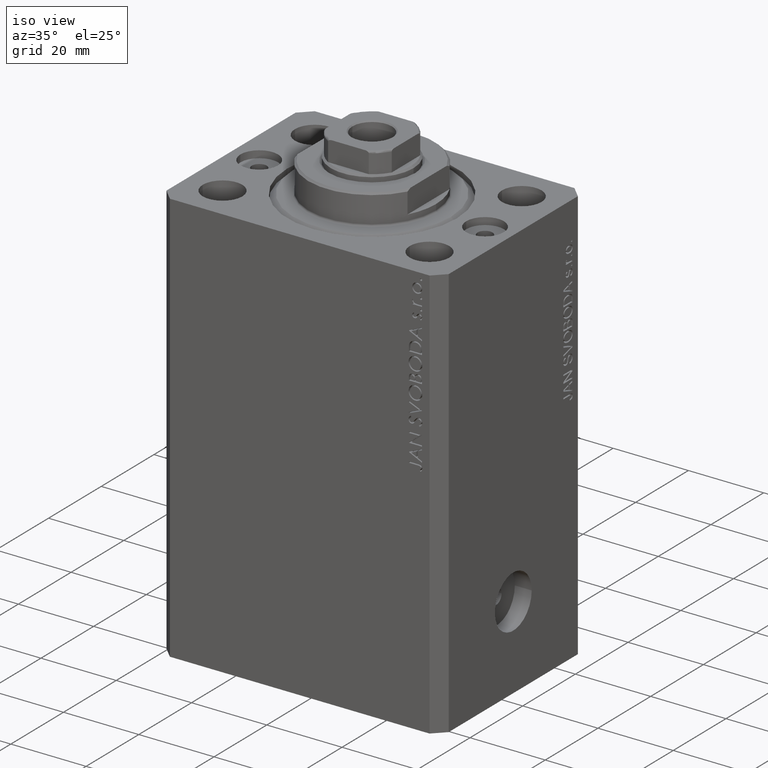
[diagram: clean part render]
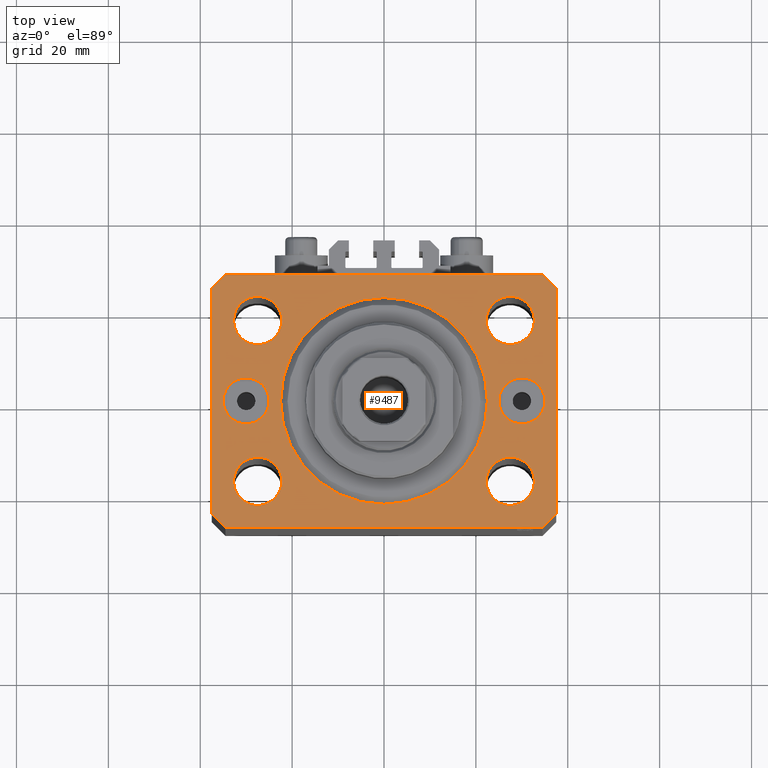
[diagram: tour spotlight — one face highlighted and labeled with its STEP entity id]
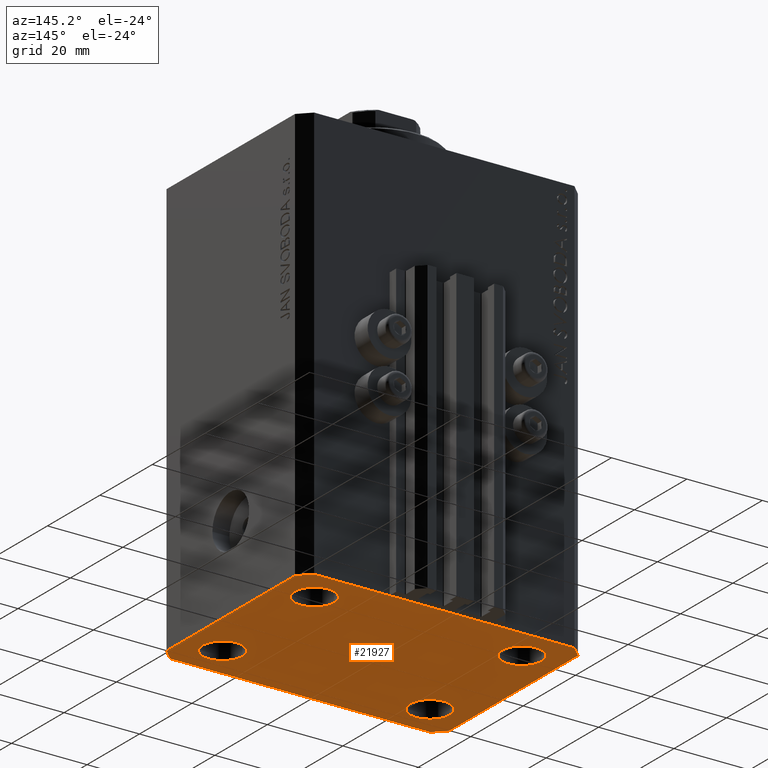
[diagram: tour spotlight — one face highlighted and labeled with its STEP entity id]
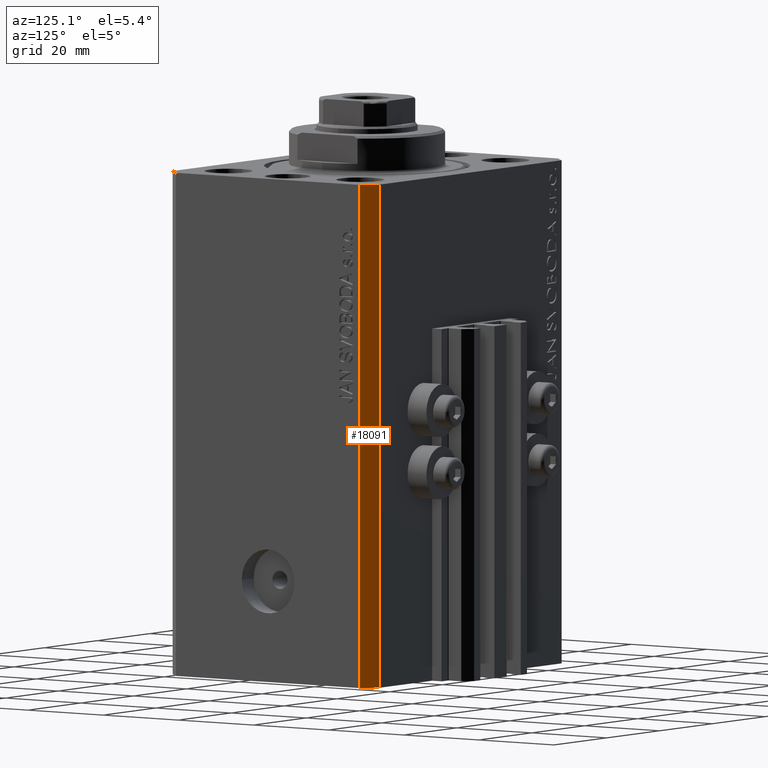
[diagram: tour spotlight — one face highlighted and labeled with its STEP entity id]
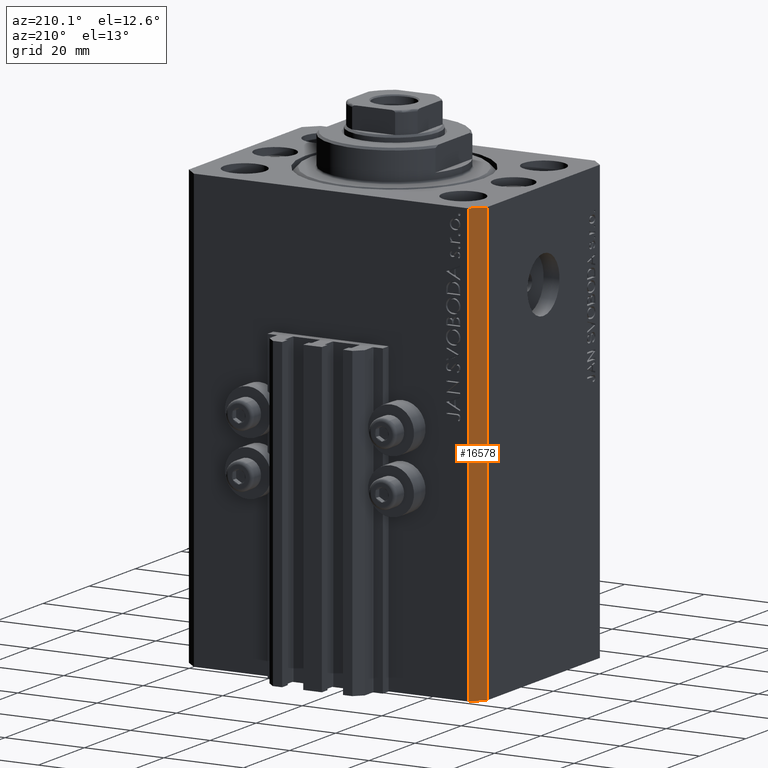
[diagram: tour spotlight — one face highlighted and labeled with its STEP entity id]
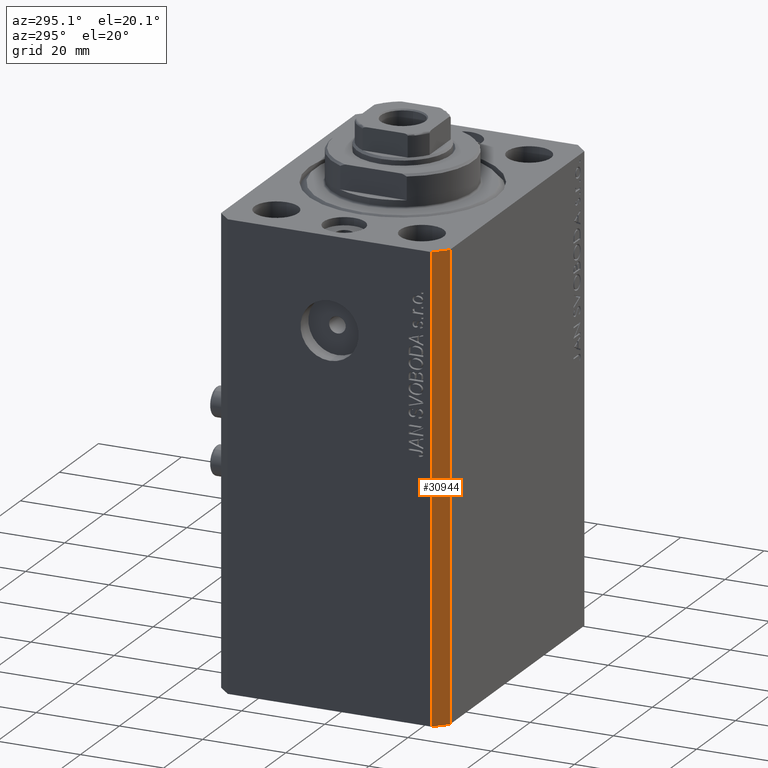
[diagram: tour spotlight — one face highlighted and labeled with its STEP entity id]
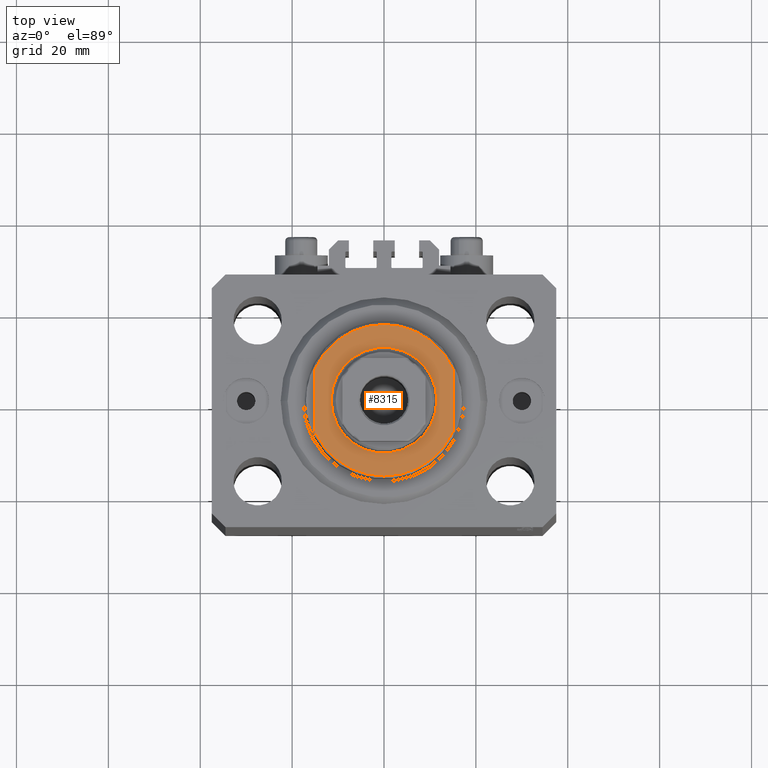
[diagram: tour spotlight — one face highlighted and labeled with its STEP entity id]
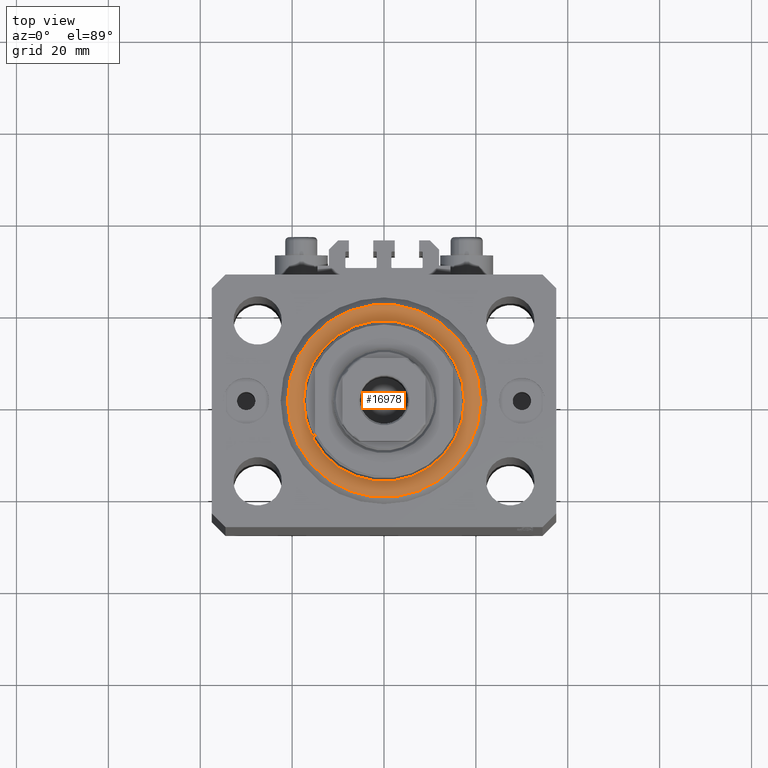
[diagram: tour spotlight — one face highlighted and labeled with its STEP entity id]
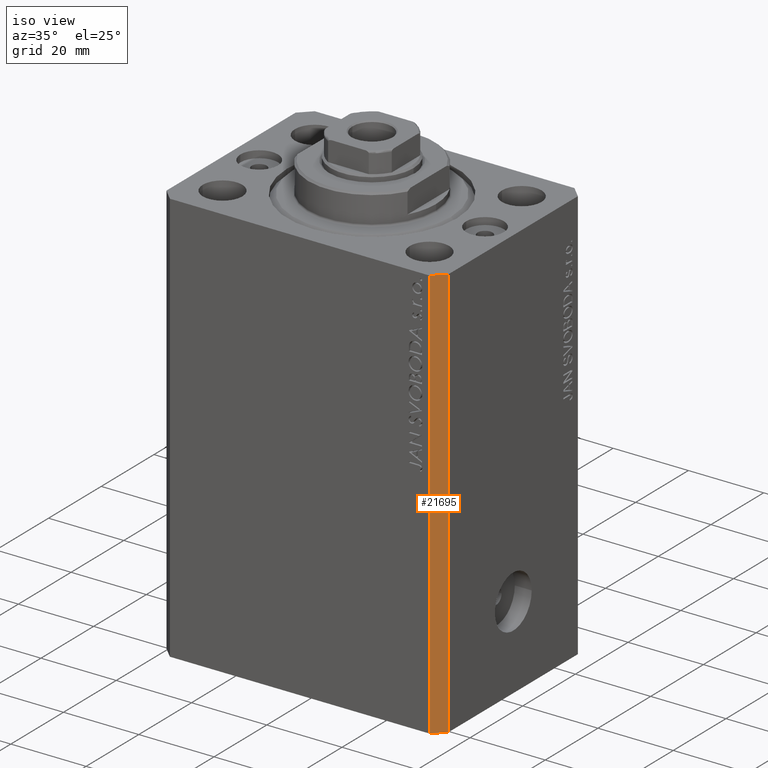
[diagram: tour spotlight — one face highlighted and labeled with its STEP entity id]
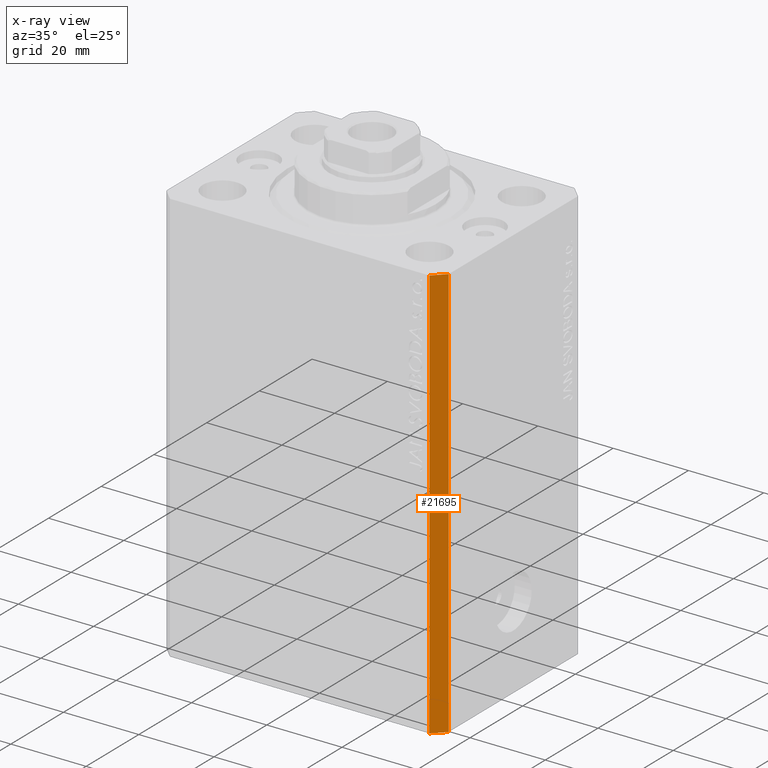
[diagram: x-ray of the same camera — body ghosted, this tour face saturated]
A machine part: a face-by-face anatomy tour. The part has 1034 B-rep faces; the first image is the clean iso view, then the 8 largest visible faces are spotlighted one at a time (largest first), each with its STEP entity span.

Face 1 — top view, entity #9487. In plain terms, the highlighted planar face has unit normal (0, 0, 1).
Definition (entity closure, byte-faithful):
#132 = DIRECTION ( 'NONE',  ( 0.000000000000000000, 0.000000000000000000, 1.000000000000000000 ) ) ;
#254 = VECTOR ( 'NONE', #45455, 1000.000000000000000 ) ;
#823 = EDGE_CURVE ( 'NONE', #27135, #6800, #34237, .T. ) ;
#1219 = LINE ( 'NONE', #1446, #27474 ) ;
#1446 = CARTESIAN_POINT ( 'NONE',  ( -34.49999999999999289, 27.50000000000000000, 0.000000000000000000 ) ) ;
#1854 = DIRECTION ( 'NONE',  ( 1.000000000000000000, 0.000000000000000000, 0.000000000000000000 ) ) ;
#2000 = CIRCLE ( 'NONE', #41643, 5.250000000000000888 ) ;
#3259 = ORIENTED_EDGE ( 'NONE', *, *, #21815, .F. ) ;
#3407 = VERTEX_POINT ( 'NONE', #8790 ) ;
#3592 = CIRCLE ( 'NONE', #30306, 5.250000000000000888 ) ;
#3727 = EDGE_CURVE ( 'NONE', #25264, #32768, #7985, .T. ) ;
#3771 = ORIENTED_EDGE ( 'NONE', *, *, #36110, .F. ) ;
#3781 = DIRECTION ( 'NONE',  ( 1.000000000000000000, 0.000000000000000000, 0.000000000000000000 ) ) ;
#4380 = EDGE_CURVE ( 'NONE', #21487, #26575, #29325, .T. ) ;
#4481 = CARTESIAN_POINT ( 'NONE',  ( 27.49999999999999289, -17.50000000000000000, 0.000000000000000000 ) ) ;
#4663 = EDGE_LOOP ( 'NONE', ( #3771, #7309 ) ) ;
#4707 = ORIENTED_EDGE ( 'NONE', *, *, #36706, .T. ) ;
#5273 = AXIS2_PLACEMENT_3D ( 'NONE', #13348, #27931, #42476 ) ;
#5532 = ORIENTED_EDGE ( 'NONE', *, *, #16841, .F. ) ;
#5950 = CARTESIAN_POINT ( 'NONE',  ( -27.50000000000000000, 17.49999999999999645, 0.000000000000000000 ) ) ;
#6189 = FACE_BOUND ( 'NONE', #14330, .T. ) ;
#6418 = DIRECTION ( 'NONE',  ( 0.000000000000000000, 0.000000000000000000, 1.000000000000000000 ) ) ;
#6424 = FACE_BOUND ( 'NONE', #38533, .T. ) ;
#6665 = DIRECTION ( 'NONE',  ( 1.000000000000000000, 0.000000000000000000, -0.000000000000000000 ) ) ;
#6672 = CARTESIAN_POINT ( 'NONE',  ( -37.49999999999999289, 24.50000000000000000, 0.000000000000000000 ) ) ;
#6792 = VECTOR ( 'NONE', #38456, 1000.000000000000000 ) ;
#6800 = VERTEX_POINT ( 'NONE', #38428 ) ;
#6939 = VERTEX_POINT ( 'NONE', #36015 ) ;
#7309 = ORIENTED_EDGE ( 'NONE', *, *, #4380, .F. ) ;
#7368 = CARTESIAN_POINT ( 'NONE',  ( 30.00000000000000000, 0.000000000000000000, 0.000000000000000000 ) ) ;
#7985 = CIRCLE ( 'NONE', #40776, 4.999999999999997335 ) ;
#8313 = EDGE_LOOP ( 'NONE', ( #10529, #17914 ) ) ;
#8698 = AXIS2_PLACEMENT_3D ( 'NONE', #30864, #38258, #35851 ) ;
#8717 = EDGE_CURVE ( 'NONE', #6939, #3407, #2000, .T. ) ;
#8720 = AXIS2_PLACEMENT_3D ( 'NONE', #19198, #25665, #40466 ) ;
#8790 = CARTESIAN_POINT ( 'NONE',  ( -22.25000000000000000, 17.49999999999999645, 0.000000000000000000 ) ) ;
#8909 = CIRCLE ( 'NONE', #35600, 5.000000000000000888 ) ;
#8950 = VERTEX_POINT ( 'NONE', #32150 ) ;
#9032 = CIRCLE ( 'NONE', #43319, 22.50000000000000355 ) ;
#9430 = DIRECTION ( 'NONE',  ( 1.000000000000000000, 0.000000000000000000, 0.000000000000000000 ) ) ;
#9487 = ADVANCED_FACE ( 'NONE', ( #10726, #6424, #17384, #46546, #31501, #6189, #46307, #20741 ), #46070, .T. ) ;
#9676 = EDGE_CURVE ( 'NONE', #8950, #35589, #21078, .T. ) ;
#9753 = DIRECTION ( 'NONE',  ( 0.000000000000000000, 0.000000000000000000, 1.000000000000000000 ) ) ;
#9770 = VERTEX_POINT ( 'NONE', #20683 ) ;
#9892 = VERTEX_POINT ( 'NONE', #36934 ) ;
#10529 = ORIENTED_EDGE ( 'NONE', *, *, #3727, .T. ) ;
#10567 = CARTESIAN_POINT ( 'NONE',  ( 22.25000000000000000, 17.49999999999999289, 0.000000000000000000 ) ) ;
#10726 = FACE_OUTER_BOUND ( 'NONE', #26470, .T. ) ;
#11215 = CARTESIAN_POINT ( 'NONE',  ( 0.000000000000000000, 0.000000000000000000, 0.000000000000000000 ) ) ;
#11610 = ORIENTED_EDGE ( 'NONE', *, *, #9676, .F. ) ;
#11851 = DIRECTION ( 'NONE',  ( 1.000000000000000000, 0.000000000000000000, 0.000000000000000000 ) ) ;
#11987 = ORIENTED_EDGE ( 'NONE', *, *, #24718, .T. ) ;
#12053 = VERTEX_POINT ( 'NONE', #25090 ) ;
#12223 = DIRECTION ( 'NONE',  ( 0.7071067811865483499, -0.7071067811865466846, 0.000000000000000000 ) ) ;
#12376 = EDGE_CURVE ( 'NONE', #32768, #25264, #29956, .T. ) ;
#12427 = VECTOR ( 'NONE', #35173, 1000.000000000000000 ) ;
#12806 = ORIENTED_EDGE ( 'NONE', *, *, #823, .T. ) ;
#13291 = CARTESIAN_POINT ( 'NONE',  ( 25.00000000000000000, 6.123233995736762338E-16, 0.000000000000000000 ) ) ;
#13344 = CARTESIAN_POINT ( 'NONE',  ( 0.000000000000000000, 0.000000000000000000, 0.000000000000000000 ) ) ;
#13348 = CARTESIAN_POINT ( 'NONE',  ( 0.000000000000000000, 0.000000000000000000, 0.000000000000000000 ) ) ;
#13967 = CARTESIAN_POINT ( 'NONE',  ( -24.99999999999999645, 0.000000000000000000, 0.000000000000000000 ) ) ;
#14330 = EDGE_LOOP ( 'NONE', ( #3259, #41585 ) ) ;
#14385 = CIRCLE ( 'NONE', #44126, 5.250000000000000888 ) ;
#15201 = EDGE_CURVE ( 'NONE', #41236, #9892, #41377, .T. ) ;
#15356 = EDGE_CURVE ( 'NONE', #38666, #16362, #38814, .T. ) ;
#15682 = DIRECTION ( 'NONE',  ( 1.000000000000000000, 0.000000000000000000, 0.000000000000000000 ) ) ;
#16223 = AXIS2_PLACEMENT_3D ( 'NONE', #4481, #23086, #15682 ) ;
#16362 = VERTEX_POINT ( 'NONE', #21754 ) ;
#16393 = CARTESIAN_POINT ( 'NONE',  ( 22.24999999999999289, -17.50000000000000000, 0.000000000000000000 ) ) ;
#16488 = CARTESIAN_POINT ( 'NONE',  ( -27.49999999999999289, -17.50000000000000000, 0.000000000000000000 ) ) ;
#16611 = CARTESIAN_POINT ( 'NONE',  ( 34.50000000000056843, 27.50000000000000000, 0.000000000000000000 ) ) ;
#16682 = DIRECTION ( 'NONE',  ( -0.7071067811865471286, -0.7071067811865479058, 0.000000000000000000 ) ) ;
#16841 = EDGE_CURVE ( 'NONE', #35589, #8950, #3592, .T. ) ;
#16898 = CARTESIAN_POINT ( 'NONE',  ( -27.50000000000000000, 17.49999999999999645, 0.000000000000000000 ) ) ;
#17384 = FACE_BOUND ( 'NONE', #32743, .T. ) ;
#17491 = VERTEX_POINT ( 'NONE', #23408 ) ;
#17914 = ORIENTED_EDGE ( 'NONE', *, *, #12376, .T. ) ;
#18242 = VERTEX_POINT ( 'NONE', #34915 ) ;
#19198 = CARTESIAN_POINT ( 'NONE',  ( 27.49999999999999289, -17.50000000000000000, 0.000000000000000000 ) ) ;
#19371 = ORIENTED_EDGE ( 'NONE', *, *, #8717, .F. ) ;
#20223 = EDGE_CURVE ( 'NONE', #3407, #6939, #14385, .T. ) ;
#20271 = LINE ( 'NONE', #30586, #6792 ) ;
#20477 = DIRECTION ( 'NONE',  ( 1.000000000000000000, 0.000000000000000000, 0.000000000000000000 ) ) ;
#20592 = CARTESIAN_POINT ( 'NONE',  ( -37.49999999999999289, 24.50000000000000000, 0.000000000000000000 ) ) ;
#20670 = VERTEX_POINT ( 'NONE', #13967 ) ;
#20683 = CARTESIAN_POINT ( 'NONE',  ( 22.50000000000000355, 0.000000000000000000, 0.000000000000000000 ) ) ;
#20741 = FACE_BOUND ( 'NONE', #8313, .T. ) ;
#20845 = VECTOR ( 'NONE', #12223, 1000.000000000000000 ) ;
#20969 = AXIS2_PLACEMENT_3D ( 'NONE', #41494, #37921, #1854 ) ;
#21078 = CIRCLE ( 'NONE', #20969, 5.250000000000000888 ) ;
#21131 = CARTESIAN_POINT ( 'NONE',  ( 34.49999999999999289, -27.49999999999999645, 0.000000000000000000 ) ) ;
#21323 = CARTESIAN_POINT ( 'NONE',  ( -32.74999999999999289, -17.50000000000000000, 0.000000000000000000 ) ) ;
#21487 = VERTEX_POINT ( 'NONE', #16393 ) ;
#21606 = EDGE_CURVE ( 'NONE', #40800, #33850, #20271, .T. ) ;
#21754 = CARTESIAN_POINT ( 'NONE',  ( 34.49999999999999289, -27.49999999999999645, 0.000000000000000000 ) ) ;
#21798 = VERTEX_POINT ( 'NONE', #6672 ) ;
#21815 = EDGE_CURVE ( 'NONE', #9770, #18242, #24298, .T. ) ;
#22286 = VECTOR ( 'NONE', #35451, 1000.000000000000000 ) ;
#22347 = ORIENTED_EDGE ( 'NONE', *, *, #41441, .T. ) ;
#22581 = ORIENTED_EDGE ( 'NONE', *, *, #15201, .F. ) ;
#22584 = ORIENTED_EDGE ( 'NONE', *, *, #20223, .F. ) ;
#23086 = DIRECTION ( 'NONE',  ( 0.000000000000000000, 0.000000000000000000, 1.000000000000000000 ) ) ;
#23369 = AXIS2_PLACEMENT_3D ( 'NONE', #13344, #31980, #6665 ) ;
#23395 = EDGE_CURVE ( 'NONE', #18242, #9770, #9032, .T. ) ;
#23408 = CARTESIAN_POINT ( 'NONE',  ( -37.49999999999999289, -24.50000000000000000, 0.000000000000000000 ) ) ;
#24298 = CIRCLE ( 'NONE', #5273, 22.50000000000000355 ) ;
#24718 = EDGE_CURVE ( 'NONE', #6800, #40800, #31302, .T. ) ;
#25030 = CARTESIAN_POINT ( 'NONE',  ( 37.49999999999999289, -24.50000000000000000, 0.000000000000000000 ) ) ;
#25090 = CARTESIAN_POINT ( 'NONE',  ( -34.99999999999999289, 6.123233995736768255E-16, 0.000000000000000000 ) ) ;
#25191 = DIRECTION ( 'NONE',  ( 1.000000000000000000, 0.000000000000000000, 0.000000000000000000 ) ) ;
#25264 = VERTEX_POINT ( 'NONE', #46702 ) ;
#25391 = CARTESIAN_POINT ( 'NONE',  ( 32.74999999999999289, -17.50000000000000000, 0.000000000000000000 ) ) ;
#25510 = DIRECTION ( 'NONE',  ( 0.000000000000000000, -0.000000000000000000, -1.000000000000000000 ) ) ;
#25665 = DIRECTION ( 'NONE',  ( 0.000000000000000000, 0.000000000000000000, 1.000000000000000000 ) ) ;
#26470 = EDGE_LOOP ( 'NONE', ( #28458, #37664, #4707, #22347, #33971, #35124, #12806, #11987 ) ) ;
#26575 = VERTEX_POINT ( 'NONE', #25391 ) ;
#27135 = VERTEX_POINT ( 'NONE', #25030 ) ;
#27249 = DIRECTION ( 'NONE',  ( 0.000000000000000000, 0.000000000000000000, 1.000000000000000000 ) ) ;
#27474 = VECTOR ( 'NONE', #16682, 1000.000000000000000 ) ;
#27544 = EDGE_LOOP ( 'NONE', ( #37559, #33015 ) ) ;
#27704 = CIRCLE ( 'NONE', #33037, 5.250000000000000888 ) ;
#27868 = EDGE_CURVE ( 'NONE', #33850, #21798, #1219, .T. ) ;
#27931 = DIRECTION ( 'NONE',  ( 0.000000000000000000, 0.000000000000000000, 1.000000000000000000 ) ) ;
#28298 = CARTESIAN_POINT ( 'NONE',  ( -34.49999999999998579, -27.49999999999999645, 0.000000000000000000 ) ) ;
#28458 = ORIENTED_EDGE ( 'NONE', *, *, #21606, .T. ) ;
#28790 = DIRECTION ( 'NONE',  ( 0.7071067811865474617, 0.7071067811865474617, 0.000000000000000000 ) ) ;
#29325 = CIRCLE ( 'NONE', #8720, 5.250000000000000888 ) ;
#29546 = DIRECTION ( 'NONE',  ( 0.000000000000000000, 0.000000000000000000, 1.000000000000000000 ) ) ;
#29782 = CARTESIAN_POINT ( 'NONE',  ( -27.49999999999999289, -17.50000000000000000, 0.000000000000000000 ) ) ;
#29956 = CIRCLE ( 'NONE', #45873, 4.999999999999997335 ) ;
#30306 = AXIS2_PLACEMENT_3D ( 'NONE', #44793, #41666, #9430 ) ;
#30395 = CARTESIAN_POINT ( 'NONE',  ( -37.49999999999999289, -24.50000000000000000, 0.000000000000000000 ) ) ;
#30586 = CARTESIAN_POINT ( 'NONE',  ( 34.50000000000056843, 27.50000000000000000, 0.000000000000000000 ) ) ;
#30843 = CARTESIAN_POINT ( 'NONE',  ( 37.50000000000051870, 24.49999999999995381, 0.000000000000000000 ) ) ;
#30864 = CARTESIAN_POINT ( 'NONE',  ( -30.00000000000000000, 0.000000000000000000, 0.000000000000000000 ) ) ;
#31300 = DIRECTION ( 'NONE',  ( 1.000000000000000000, 0.000000000000000000, 0.000000000000000000 ) ) ;
#31302 = LINE ( 'NONE', #30843, #39590 ) ;
#31501 = FACE_BOUND ( 'NONE', #33318, .T. ) ;
#31980 = DIRECTION ( 'NONE',  ( 0.000000000000000000, 0.000000000000000000, 1.000000000000000000 ) ) ;
#32150 = CARTESIAN_POINT ( 'NONE',  ( 32.75000000000000000, 17.49999999999999289, 0.000000000000000000 ) ) ;
#32354 = CIRCLE ( 'NONE', #8698, 5.000000000000000888 ) ;
#32368 = LINE ( 'NONE', #21131, #42079 ) ;
#32448 = DIRECTION ( 'NONE',  ( 1.000000000000000000, 0.000000000000000000, 0.000000000000000000 ) ) ;
#32743 = EDGE_LOOP ( 'NONE', ( #11610, #5532 ) ) ;
#32768 = VERTEX_POINT ( 'NONE', #13291 ) ;
#32942 = DIRECTION ( 'NONE',  ( 0.000000000000000000, 0.000000000000000000, 1.000000000000000000 ) ) ;
#33015 = ORIENTED_EDGE ( 'NONE', *, *, #46743, .F. ) ;
#33037 = AXIS2_PLACEMENT_3D ( 'NONE', #16488, #27249, #31300 ) ;
#33318 = EDGE_LOOP ( 'NONE', ( #38590, #22581 ) ) ;
#33424 = DIRECTION ( 'NONE',  ( 1.000000000000000000, 0.000000000000000000, 0.000000000000000000 ) ) ;
#33485 = CARTESIAN_POINT ( 'NONE',  ( -34.49999999999998579, -27.49999999999999645, 0.000000000000000000 ) ) ;
#33850 = VERTEX_POINT ( 'NONE', #34993 ) ;
#33971 = ORIENTED_EDGE ( 'NONE', *, *, #15356, .T. ) ;
#34237 = LINE ( 'NONE', #41392, #254 ) ;
#34913 = DIRECTION ( 'NONE',  ( 1.000000000000000000, 0.000000000000000000, 0.000000000000000000 ) ) ;
#34915 = CARTESIAN_POINT ( 'NONE',  ( -22.50000000000000355, 2.755455298081545172E-15, 0.000000000000000000 ) ) ;
#34993 = CARTESIAN_POINT ( 'NONE',  ( -34.49999999999999289, 27.50000000000000000, 0.000000000000000000 ) ) ;
#35124 = ORIENTED_EDGE ( 'NONE', *, *, #36231, .T. ) ;
#35148 = DIRECTION ( 'NONE',  ( 0.000000000000000000, -0.000000000000000000, -1.000000000000000000 ) ) ;
#35173 = DIRECTION ( 'NONE',  ( 0.000000000000000000, -1.000000000000000000, 0.000000000000000000 ) ) ;
#35451 = DIRECTION ( 'NONE',  ( 1.000000000000000000, 0.000000000000000000, 0.000000000000000000 ) ) ;
#35589 = VERTEX_POINT ( 'NONE', #10567 ) ;
#35600 = AXIS2_PLACEMENT_3D ( 'NONE', #39525, #132, #25191 ) ;
#35851 = DIRECTION ( 'NONE',  ( 1.000000000000000000, 0.000000000000000000, 0.000000000000000000 ) ) ;
#36015 = CARTESIAN_POINT ( 'NONE',  ( -32.75000000000000000, 17.49999999999999645, 0.000000000000000000 ) ) ;
#36110 = EDGE_CURVE ( 'NONE', #26575, #21487, #36835, .T. ) ;
#36231 = EDGE_CURVE ( 'NONE', #16362, #27135, #32368, .T. ) ;
#36706 = EDGE_CURVE ( 'NONE', #21798, #17491, #39477, .T. ) ;
#36820 = AXIS2_PLACEMENT_3D ( 'NONE', #29782, #29546, #11851 ) ;
#36835 = CIRCLE ( 'NONE', #16223, 5.250000000000000888 ) ;
#36934 = CARTESIAN_POINT ( 'NONE',  ( -22.24999999999999289, -17.50000000000000000, 0.000000000000000000 ) ) ;
#37559 = ORIENTED_EDGE ( 'NONE', *, *, #42174, .F. ) ;
#37664 = ORIENTED_EDGE ( 'NONE', *, *, #27868, .T. ) ;
#37794 = LINE ( 'NONE', #30395, #20845 ) ;
#37921 = DIRECTION ( 'NONE',  ( 0.000000000000000000, 0.000000000000000000, 1.000000000000000000 ) ) ;
#38258 = DIRECTION ( 'NONE',  ( 0.000000000000000000, 0.000000000000000000, 1.000000000000000000 ) ) ;
#38428 = CARTESIAN_POINT ( 'NONE',  ( 37.50000000000051870, 24.49999999999995381, 0.000000000000000000 ) ) ;
#38456 = DIRECTION ( 'NONE',  ( -1.000000000000000000, 0.000000000000000000, 0.000000000000000000 ) ) ;
#38533 = EDGE_LOOP ( 'NONE', ( #22584, #19371 ) ) ;
#38590 = ORIENTED_EDGE ( 'NONE', *, *, #39734, .F. ) ;
#38666 = VERTEX_POINT ( 'NONE', #33485 ) ;
#38814 = LINE ( 'NONE', #28298, #22286 ) ;
#39477 = LINE ( 'NONE', #20592, #12427 ) ;
#39525 = CARTESIAN_POINT ( 'NONE',  ( -30.00000000000000000, 0.000000000000000000, 0.000000000000000000 ) ) ;
#39590 = VECTOR ( 'NONE', #45861, 1000.000000000000114 ) ;
#39734 = EDGE_CURVE ( 'NONE', #9892, #41236, #27704, .T. ) ;
#40466 = DIRECTION ( 'NONE',  ( 1.000000000000000000, 0.000000000000000000, 0.000000000000000000 ) ) ;
#40776 = AXIS2_PLACEMENT_3D ( 'NONE', #40988, #35148, #34913 ) ;
#40800 = VERTEX_POINT ( 'NONE', #16611 ) ;
#40988 = CARTESIAN_POINT ( 'NONE',  ( 30.00000000000000000, 0.000000000000000000, 0.000000000000000000 ) ) ;
#41236 = VERTEX_POINT ( 'NONE', #21323 ) ;
#41377 = CIRCLE ( 'NONE', #36820, 5.250000000000000888 ) ;
#41392 = CARTESIAN_POINT ( 'NONE',  ( 37.49999999999999289, -24.50000000000000000, 0.000000000000000000 ) ) ;
#41441 = EDGE_CURVE ( 'NONE', #17491, #38666, #37794, .T. ) ;
#41494 = CARTESIAN_POINT ( 'NONE',  ( 27.50000000000000000, 17.49999999999999289, 0.000000000000000000 ) ) ;
#41585 = ORIENTED_EDGE ( 'NONE', *, *, #23395, .F. ) ;
#41643 = AXIS2_PLACEMENT_3D ( 'NONE', #5950, #6418, #32448 ) ;
#41666 = DIRECTION ( 'NONE',  ( 0.000000000000000000, 0.000000000000000000, 1.000000000000000000 ) ) ;
#42079 = VECTOR ( 'NONE', #28790, 1000.000000000000114 ) ;
#42174 = EDGE_CURVE ( 'NONE', #20670, #12053, #32354, .T. ) ;
#42476 = DIRECTION ( 'NONE',  ( 1.000000000000000000, 0.000000000000000000, 0.000000000000000000 ) ) ;
#43319 = AXIS2_PLACEMENT_3D ( 'NONE', #11215, #32942, #33424 ) ;
#44126 = AXIS2_PLACEMENT_3D ( 'NONE', #16898, #9753, #20477 ) ;
#44793 = CARTESIAN_POINT ( 'NONE',  ( 27.50000000000000000, 17.49999999999999289, 0.000000000000000000 ) ) ;
#45455 = DIRECTION ( 'NONE',  ( 1.076236605503979380E-14, 1.000000000000000000, 0.000000000000000000 ) ) ;
#45861 = DIRECTION ( 'NONE',  ( -0.7071067811865364705, 0.7071067811865584529, 0.000000000000000000 ) ) ;
#45873 = AXIS2_PLACEMENT_3D ( 'NONE', #7368, #25510, #3781 ) ;
#46070 = PLANE ( 'NONE',  #23369 ) ;
#46307 = FACE_BOUND ( 'NONE', #27544, .T. ) ;
#46546 = FACE_BOUND ( 'NONE', #4663, .T. ) ;
#46702 = CARTESIAN_POINT ( 'NONE',  ( 34.99999999999999289, 0.000000000000000000, 0.000000000000000000 ) ) ;
#46743 = EDGE_CURVE ( 'NONE', #12053, #20670, #8909, .T. ) ;

Face 2 — auxiliary view, entity #21927. In plain terms, the highlighted planar face has unit normal (0, 0, 1).
Definition (entity closure, byte-faithful):
#249 = EDGE_CURVE ( 'NONE', #17093, #33237, #11151, .T. ) ;
#497 = ORIENTED_EDGE ( 'NONE', *, *, #249, .F. ) ;
#1300 = CARTESIAN_POINT ( 'NONE',  ( -37.49999999999999289, -24.50000000000000000, -110.0000000000000000 ) ) ;
#1392 = DIRECTION ( 'NONE',  ( 1.000000000000000000, 0.000000000000000000, 0.000000000000000000 ) ) ;
#2153 = CIRCLE ( 'NONE', #35704, 5.250000000000000888 ) ;
#2485 = ORIENTED_EDGE ( 'NONE', *, *, #46039, .F. ) ;
#2600 = DIRECTION ( 'NONE',  ( -0.000000000000000000, -0.000000000000000000, -1.000000000000000000 ) ) ;
#2653 = DIRECTION ( 'NONE',  ( -0.000000000000000000, -0.000000000000000000, -1.000000000000000000 ) ) ;
#2773 = VERTEX_POINT ( 'NONE', #21042 ) ;
#2976 = AXIS2_PLACEMENT_3D ( 'NONE', #23940, #42321, #35403 ) ;
#3073 = CARTESIAN_POINT ( 'NONE',  ( 27.49999999999999289, -17.50000000000000000, -110.0000000000000000 ) ) ;
#3202 = VECTOR ( 'NONE', #44940, 1000.000000000000114 ) ;
#4001 = CARTESIAN_POINT ( 'NONE',  ( -34.49999999999998579, -27.49999999999999645, -110.0000000000000000 ) ) ;
#4018 = ORIENTED_EDGE ( 'NONE', *, *, #36983, .F. ) ;
#4252 = LINE ( 'NONE', #43893, #40121 ) ;
#4274 = CARTESIAN_POINT ( 'NONE',  ( 0.000000000000000000, 0.000000000000000000, -110.0000000000000000 ) ) ;
#4474 = VECTOR ( 'NONE', #24651, 1000.000000000000000 ) ;
#5013 = VERTEX_POINT ( 'NONE', #45975 ) ;
#5152 = ORIENTED_EDGE ( 'NONE', *, *, #26802, .F. ) ;
#5432 = DIRECTION ( 'NONE',  ( -0.000000000000000000, -0.000000000000000000, -1.000000000000000000 ) ) ;
#6774 = DIRECTION ( 'NONE',  ( 1.000000000000000000, 0.000000000000000000, 0.000000000000000000 ) ) ;
#7609 = EDGE_CURVE ( 'NONE', #5013, #2773, #21002, .T. ) ;
#7631 = CARTESIAN_POINT ( 'NONE',  ( 34.49999999999999289, -27.49999999999999645, -110.0000000000000000 ) ) ;
#7940 = EDGE_CURVE ( 'NONE', #33237, #11488, #4252, .T. ) ;
#8245 = AXIS2_PLACEMENT_3D ( 'NONE', #4274, #21464, #32692 ) ;
#9065 = VERTEX_POINT ( 'NONE', #14218 ) ;
#9305 = EDGE_CURVE ( 'NONE', #9065, #18044, #45403, .T. ) ;
#10331 = ORIENTED_EDGE ( 'NONE', *, *, #25898, .F. ) ;
#11151 = LINE ( 'NONE', #25715, #38347 ) ;
#11202 = FACE_BOUND ( 'NONE', #35065, .T. ) ;
#11488 = VERTEX_POINT ( 'NONE', #4001 ) ;
#12046 = CARTESIAN_POINT ( 'NONE',  ( -22.24999999999999289, -17.50000000000000000, -110.0000000000000000 ) ) ;
#12176 = EDGE_CURVE ( 'NONE', #26287, #37979, #14952, .T. ) ;
#14173 = CARTESIAN_POINT ( 'NONE',  ( 37.50000000000051870, 24.49999999999995381, -110.0000000000000000 ) ) ;
#14218 = CARTESIAN_POINT ( 'NONE',  ( 32.75000000000000000, 17.49999999999999289, -110.0000000000000000 ) ) ;
#14269 = DIRECTION ( 'NONE',  ( 0.7071067811865483499, -0.7071067811865466846, 0.000000000000000000 ) ) ;
#14882 = AXIS2_PLACEMENT_3D ( 'NONE', #39498, #28990, #6774 ) ;
#14928 = EDGE_CURVE ( 'NONE', #31371, #32379, #19536, .T. ) ;
#14952 = CIRCLE ( 'NONE', #24064, 5.250000000000000888 ) ;
#15355 = ORIENTED_EDGE ( 'NONE', *, *, #18898, .F. ) ;
#16135 = CARTESIAN_POINT ( 'NONE',  ( 27.49999999999999289, -17.50000000000000000, -110.0000000000000000 ) ) ;
#16419 = CARTESIAN_POINT ( 'NONE',  ( -27.49999999999999289, -17.50000000000000000, -110.0000000000000000 ) ) ;
#16604 = DIRECTION ( 'NONE',  ( 1.000000000000000000, 0.000000000000000000, 0.000000000000000000 ) ) ;
#16693 = AXIS2_PLACEMENT_3D ( 'NONE', #21436, #40314, #35781 ) ;
#16998 = LINE ( 'NONE', #31582, #4474 ) ;
#17093 = VERTEX_POINT ( 'NONE', #33760 ) ;
#17329 = EDGE_CURVE ( 'NONE', #11488, #31669, #28939, .T. ) ;
#17540 = EDGE_LOOP ( 'NONE', ( #35805, #17795 ) ) ;
#17795 = ORIENTED_EDGE ( 'NONE', *, *, #12176, .F. ) ;
#18044 = VERTEX_POINT ( 'NONE', #23004 ) ;
#18090 = DIRECTION ( 'NONE',  ( 1.000000000000000000, 0.000000000000000000, 0.000000000000000000 ) ) ;
#18110 = FACE_BOUND ( 'NONE', #33996, .T. ) ;
#18578 = ORIENTED_EDGE ( 'NONE', *, *, #24508, .F. ) ;
#18741 = CARTESIAN_POINT ( 'NONE',  ( 22.24999999999999289, -17.50000000000000000, -110.0000000000000000 ) ) ;
#18898 = EDGE_CURVE ( 'NONE', #26277, #41613, #2153, .T. ) ;
#19536 = LINE ( 'NONE', #45792, #42858 ) ;
#21002 = CIRCLE ( 'NONE', #46177, 5.250000000000000888 ) ;
#21042 = CARTESIAN_POINT ( 'NONE',  ( -32.75000000000000000, 17.49999999999999645, -110.0000000000000000 ) ) ;
#21062 = EDGE_LOOP ( 'NONE', ( #46971, #4018, #5152, #2485, #31390, #31521, #497, #25937 ) ) ;
#21189 = ORIENTED_EDGE ( 'NONE', *, *, #29925, .F. ) ;
#21436 = CARTESIAN_POINT ( 'NONE',  ( -27.50000000000000000, 17.49999999999999645, -110.0000000000000000 ) ) ;
#21464 = DIRECTION ( 'NONE',  ( 0.000000000000000000, 0.000000000000000000, 1.000000000000000000 ) ) ;
#21648 = DIRECTION ( 'NONE',  ( 0.000000000000000000, -1.000000000000000000, 0.000000000000000000 ) ) ;
#21927 = ADVANCED_FACE ( 'NONE', ( #18110, #36748, #11202, #25769, #47036 ), #40340, .F. ) ;
#23004 = CARTESIAN_POINT ( 'NONE',  ( 22.25000000000000000, 17.49999999999999289, -110.0000000000000000 ) ) ;
#23219 = LINE ( 'NONE', #37795, #34318 ) ;
#23940 = CARTESIAN_POINT ( 'NONE',  ( -27.49999999999999289, -17.50000000000000000, -110.0000000000000000 ) ) ;
#24044 = DIRECTION ( 'NONE',  ( -1.000000000000000000, 0.000000000000000000, 0.000000000000000000 ) ) ;
#24064 = AXIS2_PLACEMENT_3D ( 'NONE', #3073, #2600, #18090 ) ;
#24508 = EDGE_CURVE ( 'NONE', #41613, #26277, #40349, .T. ) ;
#24651 = DIRECTION ( 'NONE',  ( -0.7071067811865471286, -0.7071067811865479058, 0.000000000000000000 ) ) ;
#25092 = DIRECTION ( 'NONE',  ( 1.000000000000000000, 0.000000000000000000, 0.000000000000000000 ) ) ;
#25367 = AXIS2_PLACEMENT_3D ( 'NONE', #16135, #45295, #16604 ) ;
#25715 = CARTESIAN_POINT ( 'NONE',  ( -37.49999999999999289, 24.50000000000000000, -110.0000000000000000 ) ) ;
#25769 = FACE_BOUND ( 'NONE', #37145, .T. ) ;
#25859 = ORIENTED_EDGE ( 'NONE', *, *, #9305, .F. ) ;
#25898 = EDGE_CURVE ( 'NONE', #2773, #5013, #41888, .T. ) ;
#25937 = ORIENTED_EDGE ( 'NONE', *, *, #47125, .F. ) ;
#25995 = CIRCLE ( 'NONE', #34379, 5.250000000000000888 ) ;
#26277 = VERTEX_POINT ( 'NONE', #12046 ) ;
#26287 = VERTEX_POINT ( 'NONE', #18741 ) ;
#26802 = EDGE_CURVE ( 'NONE', #34735, #46109, #23219, .T. ) ;
#27223 = VECTOR ( 'NONE', #31871, 1000.000000000000114 ) ;
#28939 = LINE ( 'NONE', #33232, #37225 ) ;
#28990 = DIRECTION ( 'NONE',  ( -0.000000000000000000, -0.000000000000000000, -1.000000000000000000 ) ) ;
#29925 = EDGE_CURVE ( 'NONE', #18044, #9065, #25995, .T. ) ;
#30384 = CARTESIAN_POINT ( 'NONE',  ( 37.50000000000051870, 24.49999999999995381, -110.0000000000000000 ) ) ;
#31371 = VERTEX_POINT ( 'NONE', #41331 ) ;
#31390 = ORIENTED_EDGE ( 'NONE', *, *, #17329, .F. ) ;
#31521 = ORIENTED_EDGE ( 'NONE', *, *, #7940, .F. ) ;
#31582 = CARTESIAN_POINT ( 'NONE',  ( -34.49999999999999289, 27.50000000000000000, -110.0000000000000000 ) ) ;
#31669 = VERTEX_POINT ( 'NONE', #7631 ) ;
#31696 = DIRECTION ( 'NONE',  ( 1.000000000000000000, 0.000000000000000000, 0.000000000000000000 ) ) ;
#31871 = DIRECTION ( 'NONE',  ( 0.7071067811865474617, 0.7071067811865474617, 0.000000000000000000 ) ) ;
#32379 = VERTEX_POINT ( 'NONE', #44506 ) ;
#32521 = CARTESIAN_POINT ( 'NONE',  ( 32.74999999999999289, -17.50000000000000000, -110.0000000000000000 ) ) ;
#32692 = DIRECTION ( 'NONE',  ( 1.000000000000000000, 0.000000000000000000, -0.000000000000000000 ) ) ;
#32815 = CARTESIAN_POINT ( 'NONE',  ( 37.49999999999999289, -24.50000000000000000, -110.0000000000000000 ) ) ;
#33232 = CARTESIAN_POINT ( 'NONE',  ( -34.49999999999998579, -27.49999999999999645, -110.0000000000000000 ) ) ;
#33237 = VERTEX_POINT ( 'NONE', #1300 ) ;
#33760 = CARTESIAN_POINT ( 'NONE',  ( -37.49999999999999289, 24.50000000000000000, -110.0000000000000000 ) ) ;
#33996 = EDGE_LOOP ( 'NONE', ( #15355, #18578 ) ) ;
#34318 = VECTOR ( 'NONE', #42048, 1000.000000000000000 ) ;
#34379 = AXIS2_PLACEMENT_3D ( 'NONE', #37224, #5432, #1392 ) ;
#34735 = VERTEX_POINT ( 'NONE', #32815 ) ;
#35065 = EDGE_LOOP ( 'NONE', ( #25859, #21189 ) ) ;
#35276 = CIRCLE ( 'NONE', #25367, 5.250000000000000888 ) ;
#35363 = CARTESIAN_POINT ( 'NONE',  ( -27.50000000000000000, 17.49999999999999645, -110.0000000000000000 ) ) ;
#35403 = DIRECTION ( 'NONE',  ( 1.000000000000000000, 0.000000000000000000, 0.000000000000000000 ) ) ;
#35704 = AXIS2_PLACEMENT_3D ( 'NONE', #16419, #45568, #31696 ) ;
#35781 = DIRECTION ( 'NONE',  ( 1.000000000000000000, 0.000000000000000000, 0.000000000000000000 ) ) ;
#35805 = ORIENTED_EDGE ( 'NONE', *, *, #39519, .F. ) ;
#36169 = CARTESIAN_POINT ( 'NONE',  ( 34.49999999999999289, -27.49999999999999645, -110.0000000000000000 ) ) ;
#36748 = FACE_BOUND ( 'NONE', #17540, .T. ) ;
#36983 = EDGE_CURVE ( 'NONE', #46109, #31371, #41587, .T. ) ;
#37145 = EDGE_LOOP ( 'NONE', ( #39799, #10331 ) ) ;
#37224 = CARTESIAN_POINT ( 'NONE',  ( 27.50000000000000000, 17.49999999999999289, -110.0000000000000000 ) ) ;
#37225 = VECTOR ( 'NONE', #47089, 1000.000000000000000 ) ;
#37795 = CARTESIAN_POINT ( 'NONE',  ( 37.49999999999999289, -24.50000000000000000, -110.0000000000000000 ) ) ;
#37979 = VERTEX_POINT ( 'NONE', #32521 ) ;
#38347 = VECTOR ( 'NONE', #21648, 1000.000000000000000 ) ;
#39498 = CARTESIAN_POINT ( 'NONE',  ( 27.50000000000000000, 17.49999999999999289, -110.0000000000000000 ) ) ;
#39519 = EDGE_CURVE ( 'NONE', #37979, #26287, #35276, .T. ) ;
#39799 = ORIENTED_EDGE ( 'NONE', *, *, #7609, .F. ) ;
#40121 = VECTOR ( 'NONE', #14269, 1000.000000000000000 ) ;
#40314 = DIRECTION ( 'NONE',  ( -0.000000000000000000, -0.000000000000000000, -1.000000000000000000 ) ) ;
#40340 = PLANE ( 'NONE',  #8245 ) ;
#40349 = CIRCLE ( 'NONE', #2976, 5.250000000000000888 ) ;
#41331 = CARTESIAN_POINT ( 'NONE',  ( 34.50000000000056843, 27.50000000000000000, -110.0000000000000000 ) ) ;
#41587 = LINE ( 'NONE', #30384, #3202 ) ;
#41613 = VERTEX_POINT ( 'NONE', #42515 ) ;
#41888 = CIRCLE ( 'NONE', #16693, 5.250000000000000888 ) ;
#42048 = DIRECTION ( 'NONE',  ( 1.076236605503979380E-14, 1.000000000000000000, 0.000000000000000000 ) ) ;
#42321 = DIRECTION ( 'NONE',  ( -0.000000000000000000, -0.000000000000000000, -1.000000000000000000 ) ) ;
#42515 = CARTESIAN_POINT ( 'NONE',  ( -32.74999999999999289, -17.50000000000000000, -110.0000000000000000 ) ) ;
#42858 = VECTOR ( 'NONE', #24044, 1000.000000000000000 ) ;
#43893 = CARTESIAN_POINT ( 'NONE',  ( -37.49999999999999289, -24.50000000000000000, -110.0000000000000000 ) ) ;
#44506 = CARTESIAN_POINT ( 'NONE',  ( -34.49999999999999289, 27.50000000000000000, -110.0000000000000000 ) ) ;
#44940 = DIRECTION ( 'NONE',  ( -0.7071067811865364705, 0.7071067811865584529, 0.000000000000000000 ) ) ;
#45295 = DIRECTION ( 'NONE',  ( -0.000000000000000000, -0.000000000000000000, -1.000000000000000000 ) ) ;
#45403 = CIRCLE ( 'NONE', #14882, 5.250000000000000888 ) ;
#45568 = DIRECTION ( 'NONE',  ( -0.000000000000000000, -0.000000000000000000, -1.000000000000000000 ) ) ;
#45792 = CARTESIAN_POINT ( 'NONE',  ( 34.50000000000056843, 27.50000000000000000, -110.0000000000000000 ) ) ;
#45975 = CARTESIAN_POINT ( 'NONE',  ( -22.25000000000000000, 17.49999999999999645, -110.0000000000000000 ) ) ;
#46039 = EDGE_CURVE ( 'NONE', #31669, #34735, #46440, .T. ) ;
#46109 = VERTEX_POINT ( 'NONE', #14173 ) ;
#46177 = AXIS2_PLACEMENT_3D ( 'NONE', #35363, #2653, #25092 ) ;
#46440 = LINE ( 'NONE', #36169, #27223 ) ;
#46971 = ORIENTED_EDGE ( 'NONE', *, *, #14928, .F. ) ;
#47036 = FACE_OUTER_BOUND ( 'NONE', #21062, .T. ) ;
#47089 = DIRECTION ( 'NONE',  ( 1.000000000000000000, 0.000000000000000000, 0.000000000000000000 ) ) ;
#47125 = EDGE_CURVE ( 'NONE', #32379, #17093, #16998, .T. ) ;

Face 3 — auxiliary view, entity #18091. In plain terms, the highlighted planar face has unit normal (0.7071, 0.7071, 0).
Definition (entity closure, byte-faithful):
#182 = LINE ( 'NONE', #17820, #13913 ) ;
#228 = EDGE_CURVE ( 'NONE', #31371, #40800, #182, .T. ) ;
#1293 = CARTESIAN_POINT ( 'NONE',  ( 37.50000000000051870, 24.49999999999995381, -110.0000000000000000 ) ) ;
#2875 = AXIS2_PLACEMENT_3D ( 'NONE', #1293, #5108, #41157 ) ;
#3202 = VECTOR ( 'NONE', #44940, 1000.000000000000114 ) ;
#5108 = DIRECTION ( 'NONE',  ( 0.7071067811865585639, 0.7071067811865365815, -0.000000000000000000 ) ) ;
#5560 = PLANE ( 'NONE',  #2875 ) ;
#6800 = VERTEX_POINT ( 'NONE', #38428 ) ;
#8947 = ORIENTED_EDGE ( 'NONE', *, *, #36983, .T. ) ;
#10506 = ORIENTED_EDGE ( 'NONE', *, *, #19325, .F. ) ;
#13913 = VECTOR ( 'NONE', #46982, 1000.000000000000000 ) ;
#14173 = CARTESIAN_POINT ( 'NONE',  ( 37.50000000000051870, 24.49999999999995381, -110.0000000000000000 ) ) ;
#16611 = CARTESIAN_POINT ( 'NONE',  ( 34.50000000000056843, 27.50000000000000000, 0.000000000000000000 ) ) ;
#17820 = CARTESIAN_POINT ( 'NONE',  ( 34.50000000000056843, 27.50000000000000000, -110.0000000000000000 ) ) ;
#18091 = ADVANCED_FACE ( 'NONE', ( #19423 ), #5560, .T. ) ;
#18927 = VECTOR ( 'NONE', #32241, 1000.000000000000000 ) ;
#19325 = EDGE_CURVE ( 'NONE', #46109, #6800, #46571, .T. ) ;
#19423 = FACE_OUTER_BOUND ( 'NONE', #31130, .T. ) ;
#24718 = EDGE_CURVE ( 'NONE', #6800, #40800, #31302, .T. ) ;
#30384 = CARTESIAN_POINT ( 'NONE',  ( 37.50000000000051870, 24.49999999999995381, -110.0000000000000000 ) ) ;
#30843 = CARTESIAN_POINT ( 'NONE',  ( 37.50000000000051870, 24.49999999999995381, 0.000000000000000000 ) ) ;
#31130 = EDGE_LOOP ( 'NONE', ( #42497, #10506, #8947, #35764 ) ) ;
#31302 = LINE ( 'NONE', #30843, #39590 ) ;
#31371 = VERTEX_POINT ( 'NONE', #41331 ) ;
#32241 = DIRECTION ( 'NONE',  ( 0.000000000000000000, 0.000000000000000000, 1.000000000000000000 ) ) ;
#32945 = CARTESIAN_POINT ( 'NONE',  ( 37.50000000000051870, 24.49999999999995381, -110.0000000000000000 ) ) ;
#35764 = ORIENTED_EDGE ( 'NONE', *, *, #228, .T. ) ;
#36983 = EDGE_CURVE ( 'NONE', #46109, #31371, #41587, .T. ) ;
#38428 = CARTESIAN_POINT ( 'NONE',  ( 37.50000000000051870, 24.49999999999995381, 0.000000000000000000 ) ) ;
#39590 = VECTOR ( 'NONE', #45861, 1000.000000000000114 ) ;
#40800 = VERTEX_POINT ( 'NONE', #16611 ) ;
#41157 = DIRECTION ( 'NONE',  ( -0.7071067811865364705, 0.7071067811865584529, 0.000000000000000000 ) ) ;
#41331 = CARTESIAN_POINT ( 'NONE',  ( 34.50000000000056843, 27.50000000000000000, -110.0000000000000000 ) ) ;
#41587 = LINE ( 'NONE', #30384, #3202 ) ;
#42497 = ORIENTED_EDGE ( 'NONE', *, *, #24718, .F. ) ;
#44940 = DIRECTION ( 'NONE',  ( -0.7071067811865364705, 0.7071067811865584529, 0.000000000000000000 ) ) ;
#45861 = DIRECTION ( 'NONE',  ( -0.7071067811865364705, 0.7071067811865584529, 0.000000000000000000 ) ) ;
#46109 = VERTEX_POINT ( 'NONE', #14173 ) ;
#46571 = LINE ( 'NONE', #32945, #18927 ) ;
#46982 = DIRECTION ( 'NONE',  ( 0.000000000000000000, 0.000000000000000000, 1.000000000000000000 ) ) ;

Face 4 — auxiliary view, entity #16578. In plain terms, the highlighted planar face has unit normal (-0.7071, 0.7071, 0).
Definition (entity closure, byte-faithful):
#1219 = LINE ( 'NONE', #1446, #27474 ) ;
#1261 = EDGE_CURVE ( 'NONE', #17093, #21798, #16625, .T. ) ;
#1446 = CARTESIAN_POINT ( 'NONE',  ( -34.49999999999999289, 27.50000000000000000, 0.000000000000000000 ) ) ;
#1578 = ORIENTED_EDGE ( 'NONE', *, *, #47125, .T. ) ;
#4474 = VECTOR ( 'NONE', #24651, 1000.000000000000000 ) ;
#6672 = CARTESIAN_POINT ( 'NONE',  ( -37.49999999999999289, 24.50000000000000000, 0.000000000000000000 ) ) ;
#6837 = PLANE ( 'NONE',  #22690 ) ;
#7078 = DIRECTION ( 'NONE',  ( -0.7071067811865471286, -0.7071067811865479058, 0.000000000000000000 ) ) ;
#8657 = VECTOR ( 'NONE', #24256, 1000.000000000000000 ) ;
#8883 = ORIENTED_EDGE ( 'NONE', *, *, #1261, .T. ) ;
#11944 = VECTOR ( 'NONE', #39937, 1000.000000000000000 ) ;
#16578 = ADVANCED_FACE ( 'NONE', ( #39088 ), #6837, .T. ) ;
#16625 = LINE ( 'NONE', #41713, #8657 ) ;
#16682 = DIRECTION ( 'NONE',  ( -0.7071067811865471286, -0.7071067811865479058, 0.000000000000000000 ) ) ;
#16998 = LINE ( 'NONE', #31582, #4474 ) ;
#17093 = VERTEX_POINT ( 'NONE', #33760 ) ;
#17323 = DIRECTION ( 'NONE',  ( -0.7071067811865479058, 0.7071067811865471286, 0.000000000000000000 ) ) ;
#17566 = CARTESIAN_POINT ( 'NONE',  ( -34.49999999999999289, 27.50000000000000000, -110.0000000000000000 ) ) ;
#18660 = LINE ( 'NONE', #43499, #11944 ) ;
#20305 = ORIENTED_EDGE ( 'NONE', *, *, #46520, .F. ) ;
#21798 = VERTEX_POINT ( 'NONE', #6672 ) ;
#22690 = AXIS2_PLACEMENT_3D ( 'NONE', #17566, #17323, #7078 ) ;
#24256 = DIRECTION ( 'NONE',  ( 0.000000000000000000, 0.000000000000000000, 1.000000000000000000 ) ) ;
#24651 = DIRECTION ( 'NONE',  ( -0.7071067811865471286, -0.7071067811865479058, 0.000000000000000000 ) ) ;
#27474 = VECTOR ( 'NONE', #16682, 1000.000000000000000 ) ;
#27868 = EDGE_CURVE ( 'NONE', #33850, #21798, #1219, .T. ) ;
#31582 = CARTESIAN_POINT ( 'NONE',  ( -34.49999999999999289, 27.50000000000000000, -110.0000000000000000 ) ) ;
#32379 = VERTEX_POINT ( 'NONE', #44506 ) ;
#33760 = CARTESIAN_POINT ( 'NONE',  ( -37.49999999999999289, 24.50000000000000000, -110.0000000000000000 ) ) ;
#33850 = VERTEX_POINT ( 'NONE', #34993 ) ;
#34993 = CARTESIAN_POINT ( 'NONE',  ( -34.49999999999999289, 27.50000000000000000, 0.000000000000000000 ) ) ;
#35360 = ORIENTED_EDGE ( 'NONE', *, *, #27868, .F. ) ;
#39088 = FACE_OUTER_BOUND ( 'NONE', #39463, .T. ) ;
#39463 = EDGE_LOOP ( 'NONE', ( #35360, #20305, #1578, #8883 ) ) ;
#39937 = DIRECTION ( 'NONE',  ( 0.000000000000000000, 0.000000000000000000, 1.000000000000000000 ) ) ;
#41713 = CARTESIAN_POINT ( 'NONE',  ( -37.49999999999999289, 24.50000000000000000, -110.0000000000000000 ) ) ;
#43499 = CARTESIAN_POINT ( 'NONE',  ( -34.49999999999999289, 27.50000000000000000, -110.0000000000000000 ) ) ;
#44506 = CARTESIAN_POINT ( 'NONE',  ( -34.49999999999999289, 27.50000000000000000, -110.0000000000000000 ) ) ;
#46520 = EDGE_CURVE ( 'NONE', #32379, #33850, #18660, .T. ) ;
#47125 = EDGE_CURVE ( 'NONE', #32379, #17093, #16998, .T. ) ;

Face 5 — auxiliary view, entity #30944. In plain terms, the highlighted planar face has unit normal (-0.7071, -0.7071, 0).
Definition (entity closure, byte-faithful):
#416 = DIRECTION ( 'NONE',  ( -0.7071067811865466846, -0.7071067811865483499, 0.000000000000000000 ) ) ;
#1300 = CARTESIAN_POINT ( 'NONE',  ( -37.49999999999999289, -24.50000000000000000, -110.0000000000000000 ) ) ;
#2167 = ORIENTED_EDGE ( 'NONE', *, *, #7940, .T. ) ;
#3785 = EDGE_LOOP ( 'NONE', ( #10516, #6961, #2167, #20381 ) ) ;
#4001 = CARTESIAN_POINT ( 'NONE',  ( -34.49999999999998579, -27.49999999999999645, -110.0000000000000000 ) ) ;
#4252 = LINE ( 'NONE', #43893, #40121 ) ;
#6961 = ORIENTED_EDGE ( 'NONE', *, *, #43151, .F. ) ;
#7940 = EDGE_CURVE ( 'NONE', #33237, #11488, #4252, .T. ) ;
#10516 = ORIENTED_EDGE ( 'NONE', *, *, #41441, .F. ) ;
#11488 = VERTEX_POINT ( 'NONE', #4001 ) ;
#12223 = DIRECTION ( 'NONE',  ( 0.7071067811865483499, -0.7071067811865466846, 0.000000000000000000 ) ) ;
#12254 = CARTESIAN_POINT ( 'NONE',  ( -34.49999999999998579, -27.49999999999999645, -110.0000000000000000 ) ) ;
#13185 = DIRECTION ( 'NONE',  ( 0.000000000000000000, 0.000000000000000000, 1.000000000000000000 ) ) ;
#14269 = DIRECTION ( 'NONE',  ( 0.7071067811865483499, -0.7071067811865466846, 0.000000000000000000 ) ) ;
#16544 = LINE ( 'NONE', #12254, #39207 ) ;
#17491 = VERTEX_POINT ( 'NONE', #23408 ) ;
#19401 = VECTOR ( 'NONE', #13185, 1000.000000000000000 ) ;
#20381 = ORIENTED_EDGE ( 'NONE', *, *, #43186, .T. ) ;
#20845 = VECTOR ( 'NONE', #12223, 1000.000000000000000 ) ;
#23408 = CARTESIAN_POINT ( 'NONE',  ( -37.49999999999999289, -24.50000000000000000, 0.000000000000000000 ) ) ;
#30395 = CARTESIAN_POINT ( 'NONE',  ( -37.49999999999999289, -24.50000000000000000, 0.000000000000000000 ) ) ;
#30944 = ADVANCED_FACE ( 'NONE', ( #36938 ), #43608, .T. ) ;
#32638 = CARTESIAN_POINT ( 'NONE',  ( -37.49999999999999289, -24.50000000000000000, -110.0000000000000000 ) ) ;
#33237 = VERTEX_POINT ( 'NONE', #1300 ) ;
#33485 = CARTESIAN_POINT ( 'NONE',  ( -34.49999999999998579, -27.49999999999999645, 0.000000000000000000 ) ) ;
#36938 = FACE_OUTER_BOUND ( 'NONE', #3785, .T. ) ;
#37478 = AXIS2_PLACEMENT_3D ( 'NONE', #32638, #416, #44086 ) ;
#37794 = LINE ( 'NONE', #30395, #20845 ) ;
#38290 = CARTESIAN_POINT ( 'NONE',  ( -37.49999999999999289, -24.50000000000000000, -110.0000000000000000 ) ) ;
#38666 = VERTEX_POINT ( 'NONE', #33485 ) ;
#39207 = VECTOR ( 'NONE', #44991, 1000.000000000000000 ) ;
#40121 = VECTOR ( 'NONE', #14269, 1000.000000000000000 ) ;
#41441 = EDGE_CURVE ( 'NONE', #17491, #38666, #37794, .T. ) ;
#43151 = EDGE_CURVE ( 'NONE', #33237, #17491, #45914, .T. ) ;
#43186 = EDGE_CURVE ( 'NONE', #11488, #38666, #16544, .T. ) ;
#43608 = PLANE ( 'NONE',  #37478 ) ;
#43893 = CARTESIAN_POINT ( 'NONE',  ( -37.49999999999999289, -24.50000000000000000, -110.0000000000000000 ) ) ;
#44086 = DIRECTION ( 'NONE',  ( 0.7071067811865483499, -0.7071067811865466846, 0.000000000000000000 ) ) ;
#44991 = DIRECTION ( 'NONE',  ( 0.000000000000000000, 0.000000000000000000, 1.000000000000000000 ) ) ;
#45914 = LINE ( 'NONE', #38290, #19401 ) ;

Face 6 — top view, entity #8315. In plain terms, the highlighted planar face has unit normal (0, 0, 1).
Definition (entity closure, byte-faithful):
#811 = FACE_BOUND ( 'NONE', #23323, .T. ) ;
#1047 = PLANE ( 'NONE',  #42375 ) ;
#2057 = VERTEX_POINT ( 'NONE', #25820 ) ;
#2654 = ORIENTED_EDGE ( 'NONE', *, *, #25604, .T. ) ;
#3332 = EDGE_CURVE ( 'NONE', #39531, #19784, #10965, .T. ) ;
#4984 = CARTESIAN_POINT ( 'NONE',  ( -11.50000000000000355, 0.000000000000000000, -8.000000000000000000 ) ) ;
#7418 = DIRECTION ( 'NONE',  ( -0.000000000000000000, -0.000000000000000000, 1.000000000000000000 ) ) ;
#7753 = DIRECTION ( 'NONE',  ( 0.000000000000000000, 0.000000000000000000, -1.000000000000000000 ) ) ;
#8315 = ADVANCED_FACE ( 'NONE', ( #811, #22760 ), #1047, .T. ) ;
#10230 = EDGE_LOOP ( 'NONE', ( #31857, #30684, #11189, #34045 ) ) ;
#10583 = CIRCLE ( 'NONE', #37286, 11.50000000000000355 ) ;
#10965 = LINE ( 'NONE', #12124, #23903 ) ;
#11189 = ORIENTED_EDGE ( 'NONE', *, *, #35444, .T. ) ;
#11770 = DIRECTION ( 'NONE',  ( -1.000000000000000000, 0.000000000000000000, -0.000000000000000000 ) ) ;
#12124 = CARTESIAN_POINT ( 'NONE',  ( -15.00000000000000000, -42.42640687119285303, -8.000000000000000000 ) ) ;
#13015 = CARTESIAN_POINT ( 'NONE',  ( -14.99999999999999645, 6.873863542433765517, -8.000000000000000000 ) ) ;
#15353 = DIRECTION ( 'NONE',  ( 0.000000000000000000, 0.000000000000000000, -1.000000000000000000 ) ) ;
#15779 = EDGE_CURVE ( 'NONE', #2057, #40969, #29671, .T. ) ;
#16190 = VERTEX_POINT ( 'NONE', #32798 ) ;
#16501 = VERTEX_POINT ( 'NONE', #4984 ) ;
#18486 = CARTESIAN_POINT ( 'NONE',  ( 0.000000000000000000, 0.000000000000000000, -8.000000000000000000 ) ) ;
#19301 = CIRCLE ( 'NONE', #23846, 16.50000000000000000 ) ;
#19784 = VERTEX_POINT ( 'NONE', #31831 ) ;
#21379 = CARTESIAN_POINT ( 'NONE',  ( 14.99999999999999645, -6.873863542433765517, -8.000000000000000000 ) ) ;
#22760 = FACE_OUTER_BOUND ( 'NONE', #10230, .T. ) ;
#23177 = CIRCLE ( 'NONE', #34628, 16.50000000000000000 ) ;
#23323 = EDGE_LOOP ( 'NONE', ( #2654, #42501 ) ) ;
#23846 = AXIS2_PLACEMENT_3D ( 'NONE', #18486, #7753, #40943 ) ;
#23903 = VECTOR ( 'NONE', #26489, 1000.000000000000000 ) ;
#24837 = DIRECTION ( 'NONE',  ( -0.000000000000000000, -0.000000000000000000, 1.000000000000000000 ) ) ;
#24838 = EDGE_CURVE ( 'NONE', #16190, #16501, #10583, .T. ) ;
#25604 = EDGE_CURVE ( 'NONE', #16501, #16190, #46470, .T. ) ;
#25820 = CARTESIAN_POINT ( 'NONE',  ( 14.99999999999999645, 6.873863542433765517, -8.000000000000000000 ) ) ;
#25849 = CARTESIAN_POINT ( 'NONE',  ( 15.00000000000000000, -42.42640687119285303, -8.000000000000000000 ) ) ;
#25853 = DIRECTION ( 'NONE',  ( -1.000000000000000000, 0.000000000000000000, 0.000000000000000000 ) ) ;
#26489 = DIRECTION ( 'NONE',  ( -0.000000000000000000, -1.000000000000000000, -0.000000000000000000 ) ) ;
#29671 = LINE ( 'NONE', #25849, #32994 ) ;
#30684 = ORIENTED_EDGE ( 'NONE', *, *, #15779, .T. ) ;
#31831 = CARTESIAN_POINT ( 'NONE',  ( -14.99999999999999645, -6.873863542433765517, -8.000000000000000000 ) ) ;
#31857 = ORIENTED_EDGE ( 'NONE', *, *, #43331, .T. ) ;
#32798 = CARTESIAN_POINT ( 'NONE',  ( 11.50000000000000355, 1.408343819019456570E-15, -8.000000000000000000 ) ) ;
#32994 = VECTOR ( 'NONE', #40414, 1000.000000000000000 ) ;
#33491 = DIRECTION ( 'NONE',  ( 0.000000000000000000, 0.000000000000000000, -1.000000000000000000 ) ) ;
#33726 = CARTESIAN_POINT ( 'NONE',  ( 0.000000000000000000, 0.000000000000000000, -8.000000000000000000 ) ) ;
#34045 = ORIENTED_EDGE ( 'NONE', *, *, #3332, .F. ) ;
#34628 = AXIS2_PLACEMENT_3D ( 'NONE', #33726, #33491, #25853 ) ;
#35444 = EDGE_CURVE ( 'NONE', #40969, #19784, #19301, .T. ) ;
#37286 = AXIS2_PLACEMENT_3D ( 'NONE', #42971, #24837, #43689 ) ;
#37329 = AXIS2_PLACEMENT_3D ( 'NONE', #39419, #7418, #43699 ) ;
#37339 = CARTESIAN_POINT ( 'NONE',  ( 0.000000000000000000, 0.000000000000000000, -8.000000000000000000 ) ) ;
#39419 = CARTESIAN_POINT ( 'NONE',  ( 0.000000000000000000, 0.000000000000000000, -8.000000000000000000 ) ) ;
#39531 = VERTEX_POINT ( 'NONE', #13015 ) ;
#40414 = DIRECTION ( 'NONE',  ( 0.000000000000000000, -1.000000000000000000, -0.000000000000000000 ) ) ;
#40943 = DIRECTION ( 'NONE',  ( -1.000000000000000000, 0.000000000000000000, 0.000000000000000000 ) ) ;
#40969 = VERTEX_POINT ( 'NONE', #21379 ) ;
#42375 = AXIS2_PLACEMENT_3D ( 'NONE', #37339, #15353, #11770 ) ;
#42501 = ORIENTED_EDGE ( 'NONE', *, *, #24838, .T. ) ;
#42971 = CARTESIAN_POINT ( 'NONE',  ( 0.000000000000000000, 0.000000000000000000, -8.000000000000000000 ) ) ;
#43331 = EDGE_CURVE ( 'NONE', #39531, #2057, #23177, .T. ) ;
#43689 = DIRECTION ( 'NONE',  ( -1.000000000000000000, 0.000000000000000000, 0.000000000000000000 ) ) ;
#43699 = DIRECTION ( 'NONE',  ( -1.000000000000000000, 0.000000000000000000, 0.000000000000000000 ) ) ;
#46470 = CIRCLE ( 'NONE', #37329, 11.50000000000000355 ) ;

Face 7 — top view, entity #16978. In plain terms, the highlighted planar face has unit normal (0, 0, -1).
Definition (entity closure, byte-faithful):
#1648 = CARTESIAN_POINT ( 'NONE',  ( 0.000000000000000000, 0.000000000000000000, 0.000000000000000000 ) ) ;
#2729 = PLANE ( 'NONE',  #40219 ) ;
#4293 = CARTESIAN_POINT ( 'NONE',  ( -17.50000000000000000, 2.143131898507868643E-15, -2.168404344971008868E-16 ) ) ;
#4414 = CARTESIAN_POINT ( 'NONE',  ( 17.50000000000000000, 0.000000000000000000, -2.168404344971008868E-16 ) ) ;
#5523 = CIRCLE ( 'NONE', #16183, 17.50000000000000000 ) ;
#6410 = DIRECTION ( 'NONE',  ( -0.000000000000000000, -0.000000000000000000, -1.000000000000000000 ) ) ;
#8370 = AXIS2_PLACEMENT_3D ( 'NONE', #9993, #6410, #31486 ) ;
#9274 = DIRECTION ( 'NONE',  ( 0.000000000000000000, 0.000000000000000000, 1.000000000000000000 ) ) ;
#9993 = CARTESIAN_POINT ( 'NONE',  ( 0.000000000000000000, 0.000000000000000000, 0.000000000000000000 ) ) ;
#10327 = DIRECTION ( 'NONE',  ( 0.000000000000000000, 0.000000000000000000, 1.000000000000000000 ) ) ;
#10635 = DIRECTION ( 'NONE',  ( 1.000000000000000000, 0.000000000000000000, 0.000000000000000000 ) ) ;
#11613 = CARTESIAN_POINT ( 'NONE',  ( 20.99999999999998934, 0.000000000000000000, 0.000000000000000000 ) ) ;
#14124 = CARTESIAN_POINT ( 'NONE',  ( 0.000000000000000000, 0.000000000000000000, 0.000000000000000000 ) ) ;
#14346 = CIRCLE ( 'NONE', #28094, 17.50000000000000000 ) ;
#16183 = AXIS2_PLACEMENT_3D ( 'NONE', #14124, #10327, #25363 ) ;
#16965 = ORIENTED_EDGE ( 'NONE', *, *, #27171, .T. ) ;
#16978 = ADVANCED_FACE ( 'NONE', ( #17036, #20862 ), #2729, .F. ) ;
#17036 = FACE_BOUND ( 'NONE', #33623, .T. ) ;
#17130 = ORIENTED_EDGE ( 'NONE', *, *, #39636, .T. ) ;
#17969 = ORIENTED_EDGE ( 'NONE', *, *, #38546, .T. ) ;
#18585 = VERTEX_POINT ( 'NONE', #25296 ) ;
#18796 = ORIENTED_EDGE ( 'NONE', *, *, #19465, .T. ) ;
#19465 = EDGE_CURVE ( 'NONE', #35490, #39964, #14346, .T. ) ;
#20862 = FACE_OUTER_BOUND ( 'NONE', #24479, .T. ) ;
#21610 = AXIS2_PLACEMENT_3D ( 'NONE', #24712, #43328, #10635 ) ;
#22099 = CIRCLE ( 'NONE', #8370, 20.99999999999998934 ) ;
#24479 = EDGE_LOOP ( 'NONE', ( #17130, #16965 ) ) ;
#24712 = CARTESIAN_POINT ( 'NONE',  ( 0.000000000000000000, 0.000000000000000000, 0.000000000000000000 ) ) ;
#25296 = CARTESIAN_POINT ( 'NONE',  ( -20.99999999999998934, 2.663606788145492628E-15, 0.000000000000000000 ) ) ;
#25363 = DIRECTION ( 'NONE',  ( 1.000000000000000000, 0.000000000000000000, 0.000000000000000000 ) ) ;
#27171 = EDGE_CURVE ( 'NONE', #18585, #37515, #22099, .T. ) ;
#27805 = DIRECTION ( 'NONE',  ( 1.000000000000000000, 0.000000000000000000, -0.000000000000000000 ) ) ;
#28094 = AXIS2_PLACEMENT_3D ( 'NONE', #1648, #9274, #42438 ) ;
#28523 = DIRECTION ( 'NONE',  ( 0.000000000000000000, 0.000000000000000000, 1.000000000000000000 ) ) ;
#31486 = DIRECTION ( 'NONE',  ( 1.000000000000000000, 0.000000000000000000, 0.000000000000000000 ) ) ;
#31491 = CIRCLE ( 'NONE', #21610, 20.99999999999998934 ) ;
#33623 = EDGE_LOOP ( 'NONE', ( #18796, #17969 ) ) ;
#35490 = VERTEX_POINT ( 'NONE', #4414 ) ;
#37515 = VERTEX_POINT ( 'NONE', #11613 ) ;
#38546 = EDGE_CURVE ( 'NONE', #39964, #35490, #5523, .T. ) ;
#39636 = EDGE_CURVE ( 'NONE', #37515, #18585, #31491, .T. ) ;
#39964 = VERTEX_POINT ( 'NONE', #4293 ) ;
#40219 = AXIS2_PLACEMENT_3D ( 'NONE', #42826, #28523, #27805 ) ;
#42438 = DIRECTION ( 'NONE',  ( 1.000000000000000000, 0.000000000000000000, 0.000000000000000000 ) ) ;
#42826 = CARTESIAN_POINT ( 'NONE',  ( 0.000000000000000000, 0.000000000000000000, 0.000000000000000000 ) ) ;
#43328 = DIRECTION ( 'NONE',  ( -0.000000000000000000, -0.000000000000000000, -1.000000000000000000 ) ) ;

Face 8 — iso view, entity #21695. An x-ray twin of the same camera follows (body ghosted, this face saturated) — the face is partly hidden behind the body. In plain terms, the highlighted planar face has unit normal (0.7071, -0.7071, 0).
Definition (entity closure, byte-faithful):
#1162 = EDGE_LOOP ( 'NONE', ( #32222, #12676, #42948, #35364 ) ) ;
#2263 = CARTESIAN_POINT ( 'NONE',  ( 37.49999999999999289, -24.50000000000000000, -110.0000000000000000 ) ) ;
#3699 = VECTOR ( 'NONE', #23550, 1000.000000000000000 ) ;
#7631 = CARTESIAN_POINT ( 'NONE',  ( 34.49999999999999289, -27.49999999999999645, -110.0000000000000000 ) ) ;
#9777 = FACE_OUTER_BOUND ( 'NONE', #1162, .T. ) ;
#12676 = ORIENTED_EDGE ( 'NONE', *, *, #20562, .F. ) ;
#16362 = VERTEX_POINT ( 'NONE', #21754 ) ;
#17158 = PLANE ( 'NONE',  #21162 ) ;
#20562 = EDGE_CURVE ( 'NONE', #31669, #16362, #31193, .T. ) ;
#21131 = CARTESIAN_POINT ( 'NONE',  ( 34.49999999999999289, -27.49999999999999645, 0.000000000000000000 ) ) ;
#21162 = AXIS2_PLACEMENT_3D ( 'NONE', #42708, #21222, #35808 ) ;
#21222 = DIRECTION ( 'NONE',  ( 0.7071067811865475727, -0.7071067811865475727, 0.000000000000000000 ) ) ;
#21695 = ADVANCED_FACE ( 'NONE', ( #9777 ), #17158, .T. ) ;
#21754 = CARTESIAN_POINT ( 'NONE',  ( 34.49999999999999289, -27.49999999999999645, 0.000000000000000000 ) ) ;
#23550 = DIRECTION ( 'NONE',  ( 0.000000000000000000, 0.000000000000000000, 1.000000000000000000 ) ) ;
#24564 = VECTOR ( 'NONE', #31866, 1000.000000000000000 ) ;
#25030 = CARTESIAN_POINT ( 'NONE',  ( 37.49999999999999289, -24.50000000000000000, 0.000000000000000000 ) ) ;
#27135 = VERTEX_POINT ( 'NONE', #25030 ) ;
#27223 = VECTOR ( 'NONE', #31871, 1000.000000000000114 ) ;
#28790 = DIRECTION ( 'NONE',  ( 0.7071067811865474617, 0.7071067811865474617, 0.000000000000000000 ) ) ;
#31193 = LINE ( 'NONE', #35244, #3699 ) ;
#31669 = VERTEX_POINT ( 'NONE', #7631 ) ;
#31866 = DIRECTION ( 'NONE',  ( 0.000000000000000000, 0.000000000000000000, 1.000000000000000000 ) ) ;
#31871 = DIRECTION ( 'NONE',  ( 0.7071067811865474617, 0.7071067811865474617, 0.000000000000000000 ) ) ;
#32222 = ORIENTED_EDGE ( 'NONE', *, *, #36231, .F. ) ;
#32368 = LINE ( 'NONE', #21131, #42079 ) ;
#32815 = CARTESIAN_POINT ( 'NONE',  ( 37.49999999999999289, -24.50000000000000000, -110.0000000000000000 ) ) ;
#34735 = VERTEX_POINT ( 'NONE', #32815 ) ;
#34974 = LINE ( 'NONE', #2263, #24564 ) ;
#35244 = CARTESIAN_POINT ( 'NONE',  ( 34.49999999999999289, -27.49999999999999645, -110.0000000000000000 ) ) ;
#35364 = ORIENTED_EDGE ( 'NONE', *, *, #37580, .T. ) ;
#35808 = DIRECTION ( 'NONE',  ( 0.7071067811865474617, 0.7071067811865474617, 0.000000000000000000 ) ) ;
#36169 = CARTESIAN_POINT ( 'NONE',  ( 34.49999999999999289, -27.49999999999999645, -110.0000000000000000 ) ) ;
#36231 = EDGE_CURVE ( 'NONE', #16362, #27135, #32368, .T. ) ;
#37580 = EDGE_CURVE ( 'NONE', #34735, #27135, #34974, .T. ) ;
#42079 = VECTOR ( 'NONE', #28790, 1000.000000000000114 ) ;
#42708 = CARTESIAN_POINT ( 'NONE',  ( 34.49999999999999289, -27.49999999999999645, -110.0000000000000000 ) ) ;
#42948 = ORIENTED_EDGE ( 'NONE', *, *, #46039, .T. ) ;
#46039 = EDGE_CURVE ( 'NONE', #31669, #34735, #46440, .T. ) ;
#46440 = LINE ( 'NONE', #36169, #27223 ) ;